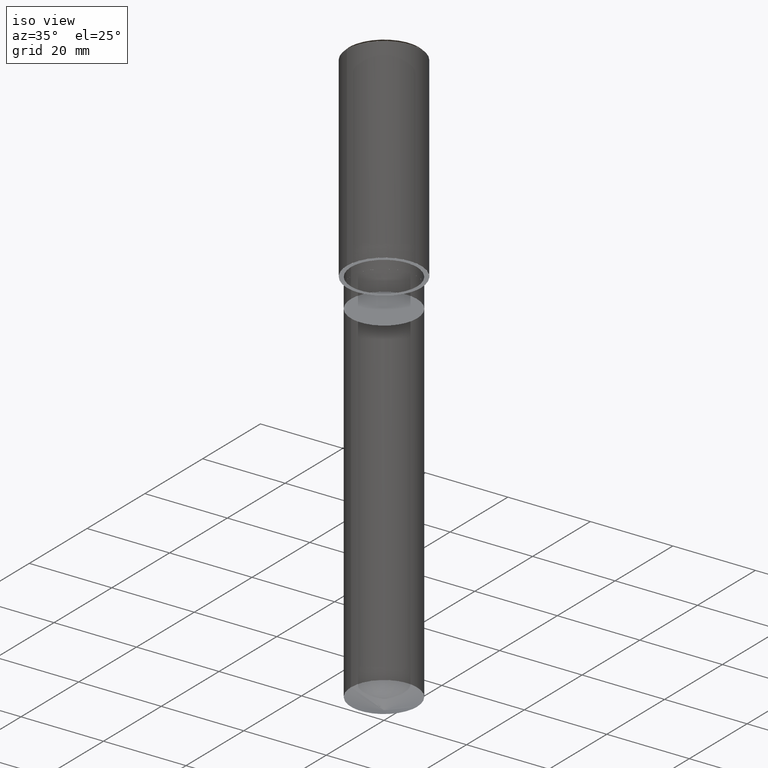
[diagram: clean part render]
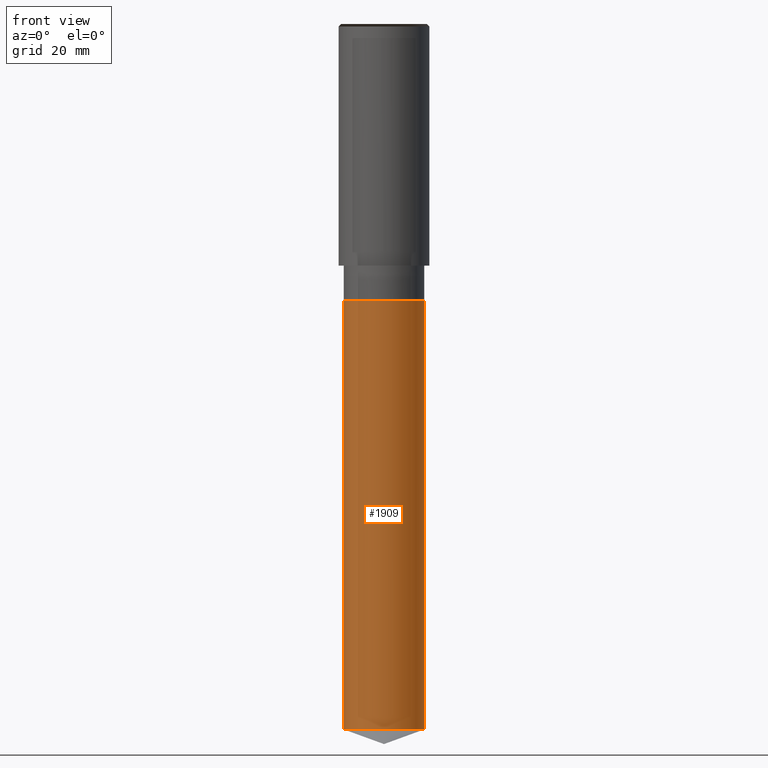
[diagram: tour spotlight — one face highlighted and labeled with its STEP entity id]
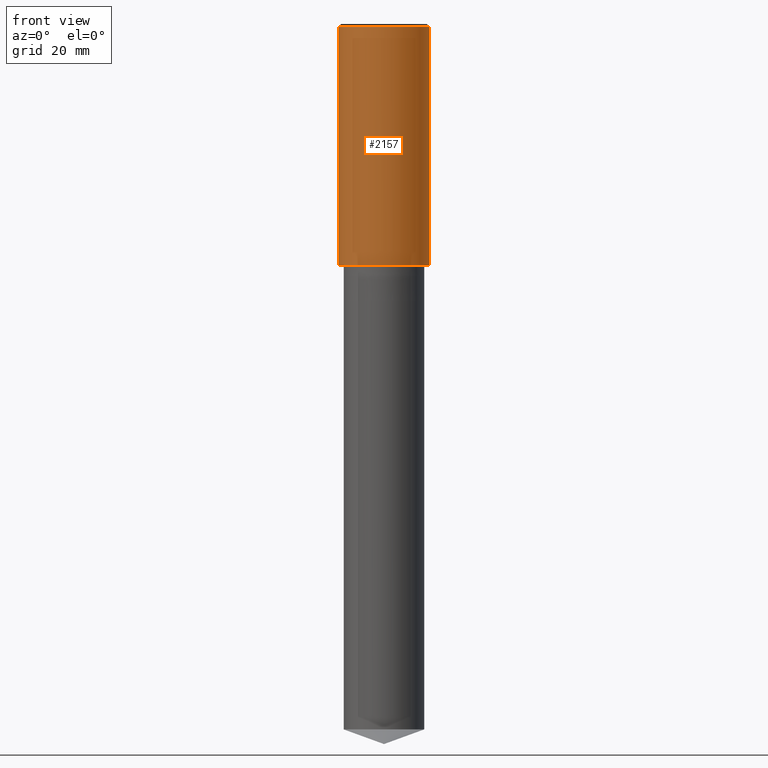
[diagram: tour spotlight — one face highlighted and labeled with its STEP entity id]
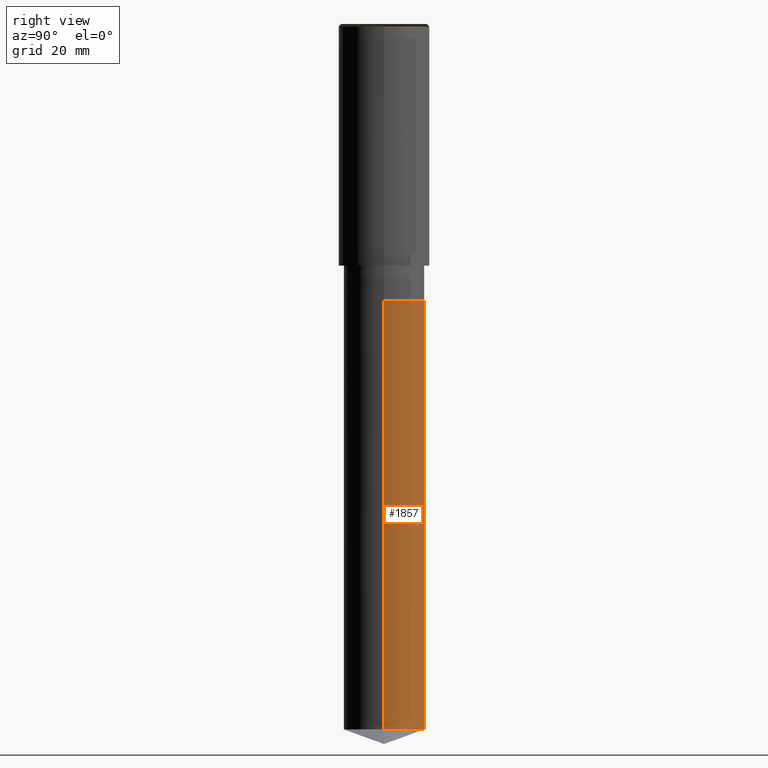
[diagram: tour spotlight — one face highlighted and labeled with its STEP entity id]
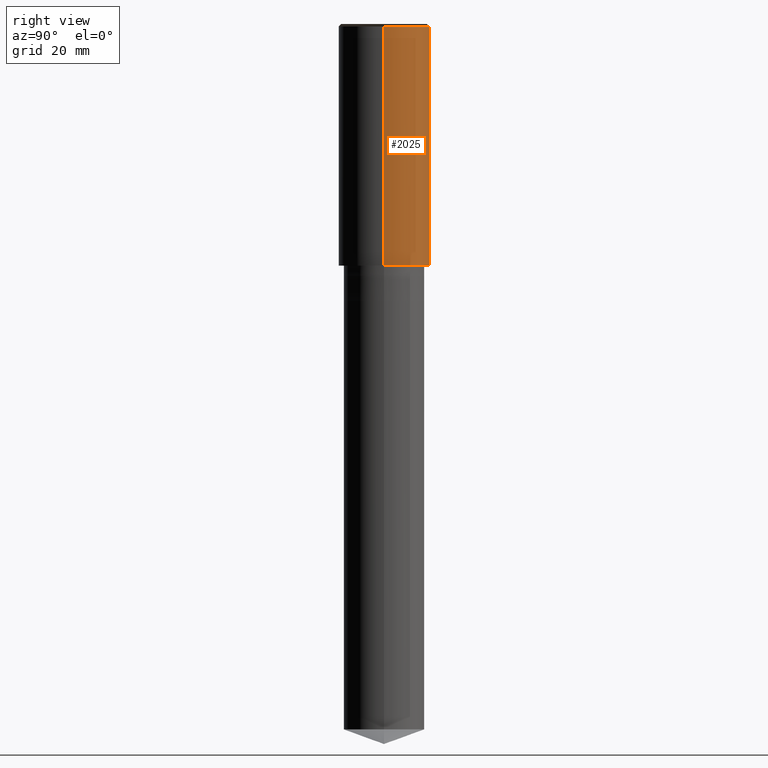
[diagram: tour spotlight — one face highlighted and labeled with its STEP entity id]
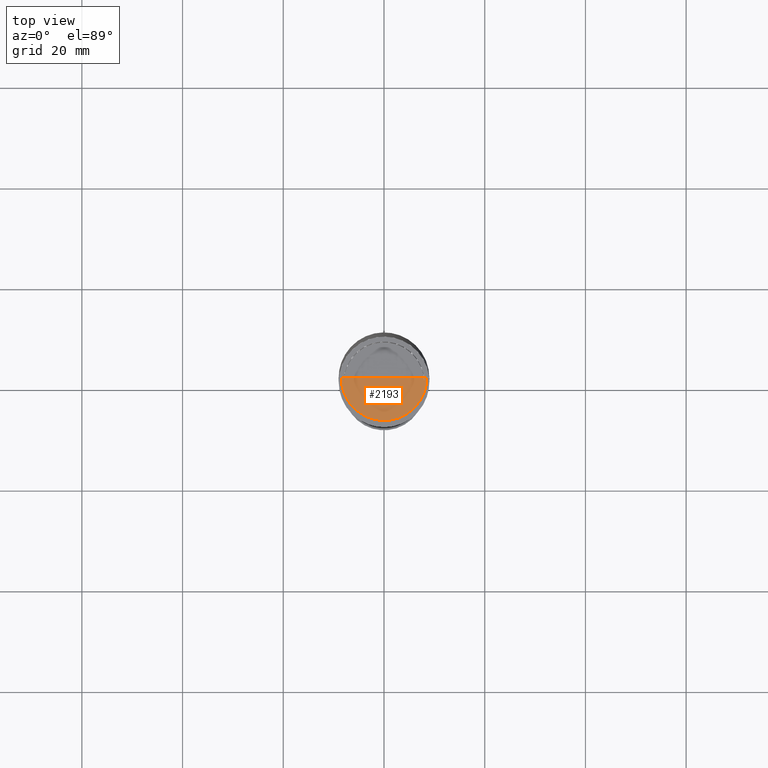
[diagram: tour spotlight — one face highlighted and labeled with its STEP entity id]
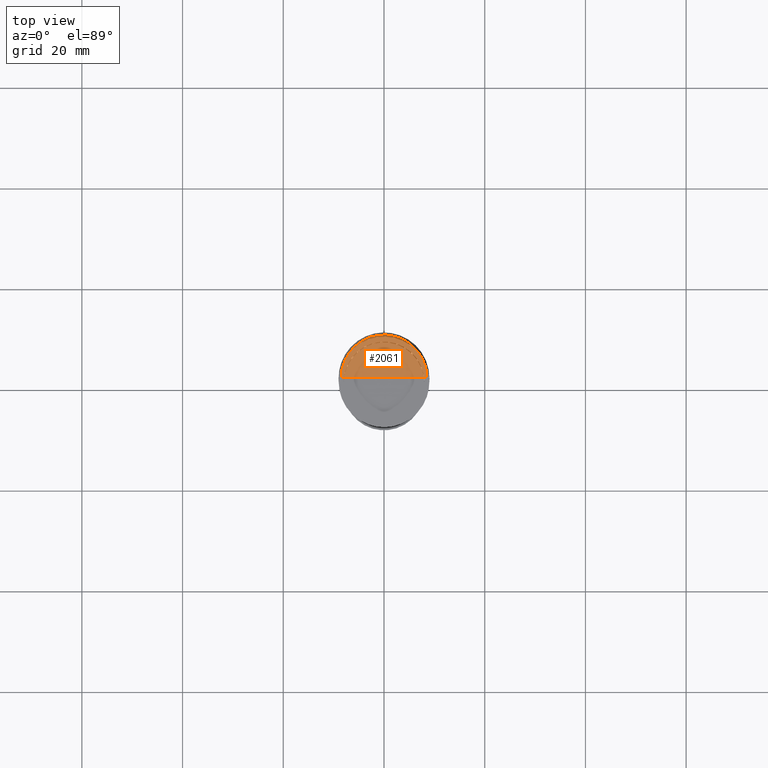
[diagram: tour spotlight — one face highlighted and labeled with its STEP entity id]
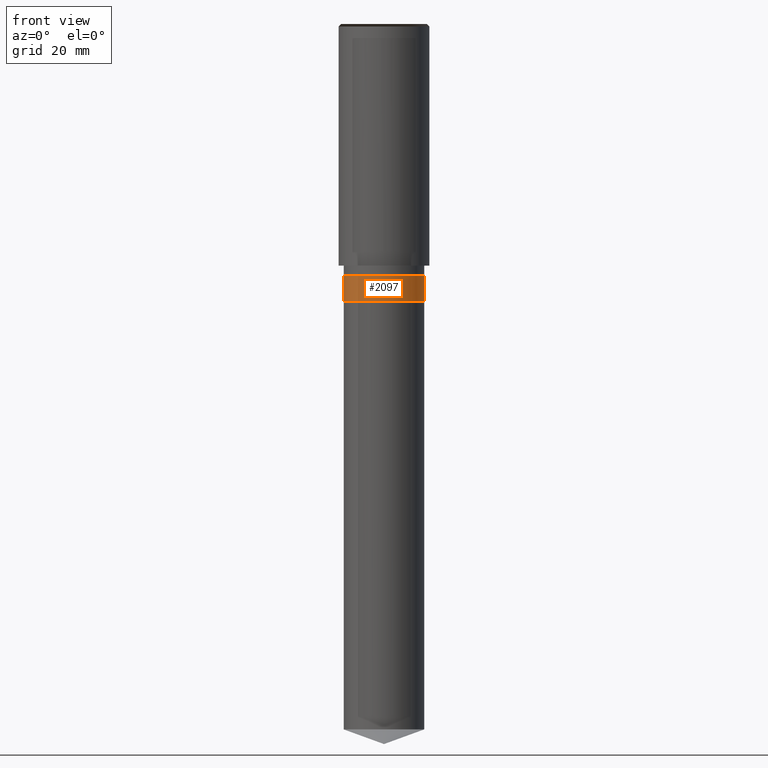
[diagram: tour spotlight — one face highlighted and labeled with its STEP entity id]
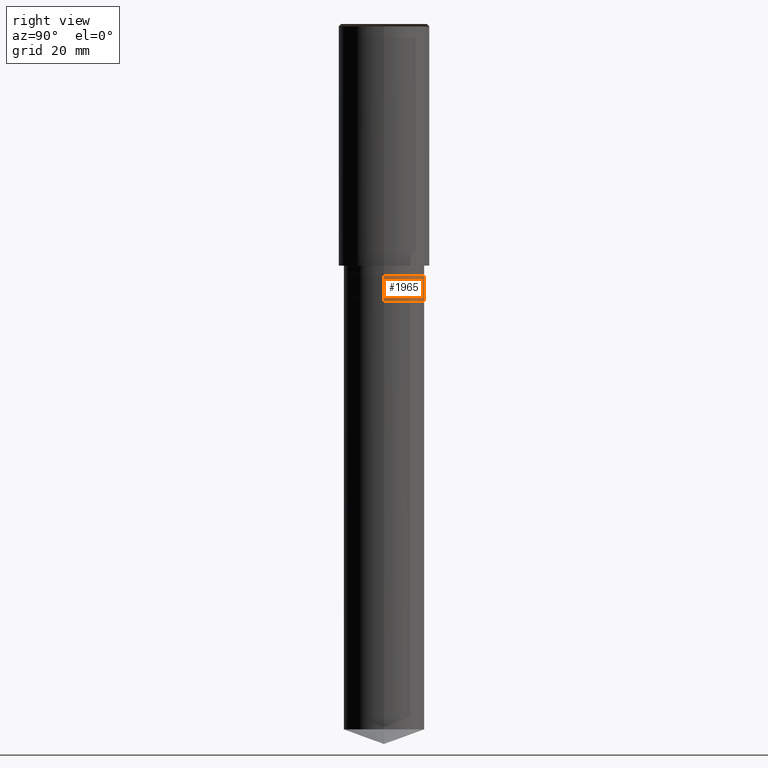
[diagram: tour spotlight — one face highlighted and labeled with its STEP entity id]
A machine part: a face-by-face anatomy tour. The part has 20 B-rep faces; the first image is the clean iso view, then the 8 largest visible faces are spotlighted one at a time (largest first), each with its STEP entity span.

Face 1 — front view, entity #1909. In plain terms, the highlighted face is a freeform B-spline surface patch.
Definition (entity closure, byte-faithful):
#1759=CARTESIAN_POINT('',(8.0,0.0,-92.08823812587));
#1763=CARTESIAN_POINT('',(-8.0,0.0,-92.08823812587));
#1764=CARTESIAN_POINT('',(8.0,0.0,-7.0));
#1768=CARTESIAN_POINT('',(-8.0,0.0,-7.0));
#1770=CARTESIAN_POINT('',(-8.0,-8.0,-92.08823812587));
#1771=CARTESIAN_POINT('',(0.0,-8.0,-92.08823812587));
#1772=CARTESIAN_POINT('',(8.0,-8.0,-92.08823812587));
#1773=CARTESIAN_POINT('',(-8.0,-8.0,-7.0));
#1774=CARTESIAN_POINT('',(0.0,-8.0,-7.0));
#1775=CARTESIAN_POINT('',(8.0,-8.0,-7.0));
#1890=(
BOUNDED_SURFACE()
B_SPLINE_SURFACE(1,2,(
(#1763,#1770,#1771,#1772,#1759),
(#1768,#1773,#1774,#1775,#1764)
), .UNSPECIFIED.,.F.,.F.,.F.)
B_SPLINE_SURFACE_WITH_KNOTS((2,2),(3,2,3),(
0.0,1.0),(
0.0,0.5,1.0), .UNSPECIFIED.)
GEOMETRIC_REPRESENTATION_ITEM()
RATIONAL_B_SPLINE_SURFACE(((1.0,0.707106781187,1.0,0.707106781187,1.0),
(1.0,0.707106781187,1.0,0.707106781187,1.0)
))
REPRESENTATION_ITEM('')
SURFACE()
);
#1891=(
BOUNDED_CURVE()
B_SPLINE_CURVE(2,(#1759,#1772,#1771,#1770,#1763),.UNSPECIFIED.,.F.,.F.)
B_SPLINE_CURVE_WITH_KNOTS((3,2,3),
(0.0,0.5,1.0),.UNSPECIFIED.)
CURVE()
GEOMETRIC_REPRESENTATION_ITEM()
RATIONAL_B_SPLINE_CURVE((1.0,0.707106781187,1.0,0.707106781187,1.0))
REPRESENTATION_ITEM('')
);
#1892=(
BOUNDED_CURVE()
B_SPLINE_CURVE(1,(#1763,#1768),.UNSPECIFIED.,.F.,.F.)
B_SPLINE_CURVE_WITH_KNOTS((2,2),
(0.0,1.0),.UNSPECIFIED.)
CURVE()
GEOMETRIC_REPRESENTATION_ITEM()
RATIONAL_B_SPLINE_CURVE((1.0,1.0))
REPRESENTATION_ITEM('')
);
#1893=(
BOUNDED_CURVE()
B_SPLINE_CURVE(2,(#1768,#1773,#1774,#1775,#1764),.UNSPECIFIED.,.F.,.F.)
B_SPLINE_CURVE_WITH_KNOTS((3,2,3),
(0.0,0.5,1.0),.UNSPECIFIED.)
CURVE()
GEOMETRIC_REPRESENTATION_ITEM()
RATIONAL_B_SPLINE_CURVE((1.0,0.707106781187,1.0,0.707106781187,1.0))
REPRESENTATION_ITEM('')
);
#1894=(
BOUNDED_CURVE()
B_SPLINE_CURVE(1,(#1764,#1759),.UNSPECIFIED.,.F.,.F.)
B_SPLINE_CURVE_WITH_KNOTS((2,2),
(0.0,1.0),.UNSPECIFIED.)
CURVE()
GEOMETRIC_REPRESENTATION_ITEM()
RATIONAL_B_SPLINE_CURVE((1.0,1.0))
REPRESENTATION_ITEM('')
);
#1895=VERTEX_POINT('',#1759);
#1896=VERTEX_POINT('',#1763);
#1897=VERTEX_POINT('',#1764);
#1898=VERTEX_POINT('',#1768);
#1899=EDGE_CURVE('',#1895,#1896,#1891,.T.);
#1900=EDGE_CURVE('',#1896,#1898,#1892,.T.);
#1901=EDGE_CURVE('',#1898,#1897,#1893,.T.);
#1902=EDGE_CURVE('',#1897,#1895,#1894,.T.);
#1903=ORIENTED_EDGE('',*,*,#1899,.T.);
#1904=ORIENTED_EDGE('',*,*,#1900,.T.);
#1905=ORIENTED_EDGE('',*,*,#1901,.T.);
#1906=ORIENTED_EDGE('',*,*,#1902,.T.);
#1907=EDGE_LOOP('',(#1903,#1904,#1905,#1906));
#1908=FACE_OUTER_BOUND('',#1907,.T.);
#1909=ADVANCED_FACE('',(#1908),#1890,.T.);

Face 2 — front view, entity #2157. In plain terms, the highlighted face is a freeform B-spline surface patch.
Definition (entity closure, byte-faithful):
#1786=CARTESIAN_POINT('',(9.0,0.0,0.0));
#1790=CARTESIAN_POINT('',(-9.0,0.0,0.0));
#1791=CARTESIAN_POINT('',(9.0,0.0,47.5));
#1795=CARTESIAN_POINT('',(-9.0,0.0,47.5));
#1808=CARTESIAN_POINT('',(-9.0,-9.0,0.0));
#1809=CARTESIAN_POINT('',(0.0,-9.0,0.0));
#1810=CARTESIAN_POINT('',(9.0,-9.0,0.0));
#1811=CARTESIAN_POINT('',(-9.0,-9.0,47.5));
#1812=CARTESIAN_POINT('',(0.0,-9.0,47.5));
#1813=CARTESIAN_POINT('',(9.0,-9.0,47.5));
#2138=(
BOUNDED_SURFACE()
B_SPLINE_SURFACE(1,2,(
(#1790,#1808,#1809,#1810,#1786),
(#1795,#1811,#1812,#1813,#1791)
), .UNSPECIFIED.,.F.,.F.,.F.)
B_SPLINE_SURFACE_WITH_KNOTS((2,2),(3,2,3),(
0.0,1.0),(
0.0,0.5,1.0), .UNSPECIFIED.)
GEOMETRIC_REPRESENTATION_ITEM()
RATIONAL_B_SPLINE_SURFACE(((1.0,0.707106781187,1.0,0.707106781187,1.0),
(1.0,0.707106781187,1.0,0.707106781187,1.0)
))
REPRESENTATION_ITEM('')
SURFACE()
);
#2139=(
BOUNDED_CURVE()
B_SPLINE_CURVE(2,(#1786,#1810,#1809,#1808,#1790),.UNSPECIFIED.,.F.,.F.)
B_SPLINE_CURVE_WITH_KNOTS((3,2,3),
(0.0,0.5,1.0),.UNSPECIFIED.)
CURVE()
GEOMETRIC_REPRESENTATION_ITEM()
RATIONAL_B_SPLINE_CURVE((1.0,0.707106781187,1.0,0.707106781187,1.0))
REPRESENTATION_ITEM('')
);
#2140=(
BOUNDED_CURVE()
B_SPLINE_CURVE(1,(#1790,#1795),.UNSPECIFIED.,.F.,.F.)
B_SPLINE_CURVE_WITH_KNOTS((2,2),
(0.0,1.0),.UNSPECIFIED.)
CURVE()
GEOMETRIC_REPRESENTATION_ITEM()
RATIONAL_B_SPLINE_CURVE((1.0,1.0))
REPRESENTATION_ITEM('')
);
#2141=(
BOUNDED_CURVE()
B_SPLINE_CURVE(2,(#1795,#1811,#1812,#1813,#1791),.UNSPECIFIED.,.F.,.F.)
B_SPLINE_CURVE_WITH_KNOTS((3,2,3),
(0.0,0.5,1.0),.UNSPECIFIED.)
CURVE()
GEOMETRIC_REPRESENTATION_ITEM()
RATIONAL_B_SPLINE_CURVE((1.0,0.707106781187,1.0,0.707106781187,1.0))
REPRESENTATION_ITEM('')
);
#2142=(
BOUNDED_CURVE()
B_SPLINE_CURVE(1,(#1791,#1786),.UNSPECIFIED.,.F.,.F.)
B_SPLINE_CURVE_WITH_KNOTS((2,2),
(0.0,1.0),.UNSPECIFIED.)
CURVE()
GEOMETRIC_REPRESENTATION_ITEM()
RATIONAL_B_SPLINE_CURVE((1.0,1.0))
REPRESENTATION_ITEM('')
);
#2143=VERTEX_POINT('',#1786);
#2144=VERTEX_POINT('',#1790);
#2145=VERTEX_POINT('',#1791);
#2146=VERTEX_POINT('',#1795);
#2147=EDGE_CURVE('',#2143,#2144,#2139,.T.);
#2148=EDGE_CURVE('',#2144,#2146,#2140,.T.);
#2149=EDGE_CURVE('',#2146,#2145,#2141,.T.);
#2150=EDGE_CURVE('',#2145,#2143,#2142,.T.);
#2151=ORIENTED_EDGE('',*,*,#2147,.T.);
#2152=ORIENTED_EDGE('',*,*,#2148,.T.);
#2153=ORIENTED_EDGE('',*,*,#2149,.T.);
#2154=ORIENTED_EDGE('',*,*,#2150,.T.);
#2155=EDGE_LOOP('',(#2151,#2152,#2153,#2154));
#2156=FACE_OUTER_BOUND('',#2155,.T.);
#2157=ADVANCED_FACE('',(#2156),#2138,.T.);

Face 3 — right view, entity #1857. In plain terms, the highlighted face is a freeform B-spline surface patch.
Definition (entity closure, byte-faithful):
#1759=CARTESIAN_POINT('',(8.0,0.0,-92.08823812587));
#1760=CARTESIAN_POINT('',(8.0,8.0,-92.08823812587));
#1761=CARTESIAN_POINT('',(0.0,8.0,-92.08823812587));
#1762=CARTESIAN_POINT('',(-8.0,8.0,-92.08823812587));
#1763=CARTESIAN_POINT('',(-8.0,0.0,-92.08823812587));
#1764=CARTESIAN_POINT('',(8.0,0.0,-7.0));
#1765=CARTESIAN_POINT('',(8.0,8.0,-7.0));
#1766=CARTESIAN_POINT('',(0.0,8.0,-7.0));
#1767=CARTESIAN_POINT('',(-8.0,8.0,-7.0));
#1768=CARTESIAN_POINT('',(-8.0,0.0,-7.0));
#1838=(
BOUNDED_SURFACE()
B_SPLINE_SURFACE(1,2,(
(#1759,#1760,#1761,#1762,#1763),
(#1764,#1765,#1766,#1767,#1768)
), .UNSPECIFIED.,.F.,.F.,.F.)
B_SPLINE_SURFACE_WITH_KNOTS((2,2),(3,2,3),(
0.0,1.0),(
0.0,0.5,1.0), .UNSPECIFIED.)
GEOMETRIC_REPRESENTATION_ITEM()
RATIONAL_B_SPLINE_SURFACE(((1.0,0.707106781187,1.0,0.707106781187,1.0),
(1.0,0.707106781187,1.0,0.707106781187,1.0)
))
REPRESENTATION_ITEM('')
SURFACE()
);
#1839=(
BOUNDED_CURVE()
B_SPLINE_CURVE(2,(#1763,#1762,#1761,#1760,#1759),.UNSPECIFIED.,.F.,.F.)
B_SPLINE_CURVE_WITH_KNOTS((3,2,3),
(0.0,0.5,1.0),.UNSPECIFIED.)
CURVE()
GEOMETRIC_REPRESENTATION_ITEM()
RATIONAL_B_SPLINE_CURVE((1.0,0.707106781187,1.0,0.707106781187,1.0))
REPRESENTATION_ITEM('')
);
#1840=(
BOUNDED_CURVE()
B_SPLINE_CURVE(1,(#1759,#1764),.UNSPECIFIED.,.F.,.F.)
B_SPLINE_CURVE_WITH_KNOTS((2,2),
(0.0,1.0),.UNSPECIFIED.)
CURVE()
GEOMETRIC_REPRESENTATION_ITEM()
RATIONAL_B_SPLINE_CURVE((1.0,1.0))
REPRESENTATION_ITEM('')
);
#1841=(
BOUNDED_CURVE()
B_SPLINE_CURVE(2,(#1764,#1765,#1766,#1767,#1768),.UNSPECIFIED.,.F.,.F.)
B_SPLINE_CURVE_WITH_KNOTS((3,2,3),
(0.0,0.5,1.0),.UNSPECIFIED.)
CURVE()
GEOMETRIC_REPRESENTATION_ITEM()
RATIONAL_B_SPLINE_CURVE((1.0,0.707106781187,1.0,0.707106781187,1.0))
REPRESENTATION_ITEM('')
);
#1842=(
BOUNDED_CURVE()
B_SPLINE_CURVE(1,(#1768,#1763),.UNSPECIFIED.,.F.,.F.)
B_SPLINE_CURVE_WITH_KNOTS((2,2),
(0.0,1.0),.UNSPECIFIED.)
CURVE()
GEOMETRIC_REPRESENTATION_ITEM()
RATIONAL_B_SPLINE_CURVE((1.0,1.0))
REPRESENTATION_ITEM('')
);
#1843=VERTEX_POINT('',#1759);
#1844=VERTEX_POINT('',#1763);
#1845=VERTEX_POINT('',#1764);
#1846=VERTEX_POINT('',#1768);
#1847=EDGE_CURVE('',#1844,#1843,#1839,.T.);
#1848=EDGE_CURVE('',#1843,#1845,#1840,.T.);
#1849=EDGE_CURVE('',#1845,#1846,#1841,.T.);
#1850=EDGE_CURVE('',#1846,#1844,#1842,.T.);
#1851=ORIENTED_EDGE('',*,*,#1847,.T.);
#1852=ORIENTED_EDGE('',*,*,#1848,.T.);
#1853=ORIENTED_EDGE('',*,*,#1849,.T.);
#1854=ORIENTED_EDGE('',*,*,#1850,.T.);
#1855=EDGE_LOOP('',(#1851,#1852,#1853,#1854));
#1856=FACE_OUTER_BOUND('',#1855,.T.);
#1857=ADVANCED_FACE('',(#1856),#1838,.T.);

Face 4 — right view, entity #2025. In plain terms, the highlighted face is a freeform B-spline surface patch.
Definition (entity closure, byte-faithful):
#1786=CARTESIAN_POINT('',(9.0,0.0,0.0));
#1787=CARTESIAN_POINT('',(9.0,9.0,0.0));
#1788=CARTESIAN_POINT('',(0.0,9.0,0.0));
#1789=CARTESIAN_POINT('',(-9.0,9.0,0.0));
#1790=CARTESIAN_POINT('',(-9.0,0.0,0.0));
#1791=CARTESIAN_POINT('',(9.0,0.0,47.5));
#1792=CARTESIAN_POINT('',(9.0,9.0,47.5));
#1793=CARTESIAN_POINT('',(0.0,9.0,47.5));
#1794=CARTESIAN_POINT('',(-9.0,9.0,47.5));
#1795=CARTESIAN_POINT('',(-9.0,0.0,47.5));
#2006=(
BOUNDED_SURFACE()
B_SPLINE_SURFACE(1,2,(
(#1786,#1787,#1788,#1789,#1790),
(#1791,#1792,#1793,#1794,#1795)
), .UNSPECIFIED.,.F.,.F.,.F.)
B_SPLINE_SURFACE_WITH_KNOTS((2,2),(3,2,3),(
0.0,1.0),(
0.0,0.5,1.0), .UNSPECIFIED.)
GEOMETRIC_REPRESENTATION_ITEM()
RATIONAL_B_SPLINE_SURFACE(((1.0,0.707106781187,1.0,0.707106781187,1.0),
(1.0,0.707106781187,1.0,0.707106781187,1.0)
))
REPRESENTATION_ITEM('')
SURFACE()
);
#2007=(
BOUNDED_CURVE()
B_SPLINE_CURVE(2,(#1790,#1789,#1788,#1787,#1786),.UNSPECIFIED.,.F.,.F.)
B_SPLINE_CURVE_WITH_KNOTS((3,2,3),
(0.0,0.5,1.0),.UNSPECIFIED.)
CURVE()
GEOMETRIC_REPRESENTATION_ITEM()
RATIONAL_B_SPLINE_CURVE((1.0,0.707106781187,1.0,0.707106781187,1.0))
REPRESENTATION_ITEM('')
);
#2008=(
BOUNDED_CURVE()
B_SPLINE_CURVE(1,(#1786,#1791),.UNSPECIFIED.,.F.,.F.)
B_SPLINE_CURVE_WITH_KNOTS((2,2),
(0.0,1.0),.UNSPECIFIED.)
CURVE()
GEOMETRIC_REPRESENTATION_ITEM()
RATIONAL_B_SPLINE_CURVE((1.0,1.0))
REPRESENTATION_ITEM('')
);
#2009=(
BOUNDED_CURVE()
B_SPLINE_CURVE(2,(#1791,#1792,#1793,#1794,#1795),.UNSPECIFIED.,.F.,.F.)
B_SPLINE_CURVE_WITH_KNOTS((3,2,3),
(0.0,0.5,1.0),.UNSPECIFIED.)
CURVE()
GEOMETRIC_REPRESENTATION_ITEM()
RATIONAL_B_SPLINE_CURVE((1.0,0.707106781187,1.0,0.707106781187,1.0))
REPRESENTATION_ITEM('')
);
#2010=(
BOUNDED_CURVE()
B_SPLINE_CURVE(1,(#1795,#1790),.UNSPECIFIED.,.F.,.F.)
B_SPLINE_CURVE_WITH_KNOTS((2,2),
(0.0,1.0),.UNSPECIFIED.)
CURVE()
GEOMETRIC_REPRESENTATION_ITEM()
RATIONAL_B_SPLINE_CURVE((1.0,1.0))
REPRESENTATION_ITEM('')
);
#2011=VERTEX_POINT('',#1786);
#2012=VERTEX_POINT('',#1790);
#2013=VERTEX_POINT('',#1791);
#2014=VERTEX_POINT('',#1795);
#2015=EDGE_CURVE('',#2012,#2011,#2007,.T.);
#2016=EDGE_CURVE('',#2011,#2013,#2008,.T.);
#2017=EDGE_CURVE('',#2013,#2014,#2009,.T.);
#2018=EDGE_CURVE('',#2014,#2012,#2010,.T.);
#2019=ORIENTED_EDGE('',*,*,#2015,.T.);
#2020=ORIENTED_EDGE('',*,*,#2016,.T.);
#2021=ORIENTED_EDGE('',*,*,#2017,.T.);
#2022=ORIENTED_EDGE('',*,*,#2018,.T.);
#2023=EDGE_LOOP('',(#2019,#2020,#2021,#2022));
#2024=FACE_OUTER_BOUND('',#2023,.T.);
#2025=ADVANCED_FACE('',(#2024),#2006,.T.);

Face 5 — top view, entity #2193. In plain terms, the highlighted face is a freeform B-spline surface patch.
Definition (entity closure, byte-faithful):
#1796=CARTESIAN_POINT('',(8.5,0.0,48.0));
#1800=CARTESIAN_POINT('',(-8.5,0.0,48.0));
#1801=CARTESIAN_POINT('',(0.0,0.0,48.0));
#1814=CARTESIAN_POINT('',(-8.5,-8.5,48.0));
#1815=CARTESIAN_POINT('',(0.0,-8.5,48.0));
#1816=CARTESIAN_POINT('',(8.5,-8.5,48.0));
#2178=(
BOUNDED_SURFACE()
B_SPLINE_SURFACE(1,2,(
(#1800,#1814,#1815,#1816,#1796),
(#1801,#1801,#1801,#1801,#1801)
), .UNSPECIFIED.,.F.,.F.,.F.)
B_SPLINE_SURFACE_WITH_KNOTS((2,2),(3,2,3),(
0.0,1.0),(
0.0,0.5,1.0), .UNSPECIFIED.)
GEOMETRIC_REPRESENTATION_ITEM()
RATIONAL_B_SPLINE_SURFACE(((1.0,0.707106781187,1.0,0.707106781187,1.0),
(1.0,0.707106781187,1.0,0.707106781187,1.0)
))
REPRESENTATION_ITEM('')
SURFACE()
);
#2179=(
BOUNDED_CURVE()
B_SPLINE_CURVE(2,(#1796,#1816,#1815,#1814,#1800),.UNSPECIFIED.,.F.,.F.)
B_SPLINE_CURVE_WITH_KNOTS((3,2,3),
(0.0,0.5,1.0),.UNSPECIFIED.)
CURVE()
GEOMETRIC_REPRESENTATION_ITEM()
RATIONAL_B_SPLINE_CURVE((1.0,0.707106781187,1.0,0.707106781187,1.0))
REPRESENTATION_ITEM('')
);
#2180=(
BOUNDED_CURVE()
B_SPLINE_CURVE(1,(#1800,#1801),.UNSPECIFIED.,.F.,.F.)
B_SPLINE_CURVE_WITH_KNOTS((2,2),
(0.0,1.0),.UNSPECIFIED.)
CURVE()
GEOMETRIC_REPRESENTATION_ITEM()
RATIONAL_B_SPLINE_CURVE((1.0,1.0))
REPRESENTATION_ITEM('')
);
#2181=(
BOUNDED_CURVE()
B_SPLINE_CURVE(1,(#1801,#1796),.UNSPECIFIED.,.F.,.F.)
B_SPLINE_CURVE_WITH_KNOTS((2,2),
(0.0,1.0),.UNSPECIFIED.)
CURVE()
GEOMETRIC_REPRESENTATION_ITEM()
RATIONAL_B_SPLINE_CURVE((1.0,1.0))
REPRESENTATION_ITEM('')
);
#2182=VERTEX_POINT('',#1796);
#2183=VERTEX_POINT('',#1800);
#2184=VERTEX_POINT('',#1801);
#2185=EDGE_CURVE('',#2182,#2183,#2179,.T.);
#2186=EDGE_CURVE('',#2183,#2184,#2180,.T.);
#2187=EDGE_CURVE('',#2184,#2182,#2181,.T.);
#2188=ORIENTED_EDGE('',*,*,#2185,.T.);
#2189=ORIENTED_EDGE('',*,*,#2186,.T.);
#2190=ORIENTED_EDGE('',*,*,#2187,.T.);
#2191=EDGE_LOOP('',(#2188,#2189,#2190));
#2192=FACE_OUTER_BOUND('',#2191,.T.);
#2193=ADVANCED_FACE('',(#2192),#2178,.T.);

Face 6 — top view, entity #2061. In plain terms, the highlighted face is a freeform B-spline surface patch.
Definition (entity closure, byte-faithful):
#1796=CARTESIAN_POINT('',(8.5,0.0,48.0));
#1797=CARTESIAN_POINT('',(8.5,8.5,48.0));
#1798=CARTESIAN_POINT('',(0.0,8.5,48.0));
#1799=CARTESIAN_POINT('',(-8.5,8.5,48.0));
#1800=CARTESIAN_POINT('',(-8.5,0.0,48.0));
#1801=CARTESIAN_POINT('',(0.0,0.0,48.0));
#2046=(
BOUNDED_SURFACE()
B_SPLINE_SURFACE(1,2,(
(#1796,#1797,#1798,#1799,#1800),
(#1801,#1801,#1801,#1801,#1801)
), .UNSPECIFIED.,.F.,.F.,.F.)
B_SPLINE_SURFACE_WITH_KNOTS((2,2),(3,2,3),(
0.0,1.0),(
0.0,0.5,1.0), .UNSPECIFIED.)
GEOMETRIC_REPRESENTATION_ITEM()
RATIONAL_B_SPLINE_SURFACE(((1.0,0.707106781187,1.0,0.707106781187,1.0),
(1.0,0.707106781187,1.0,0.707106781187,1.0)
))
REPRESENTATION_ITEM('')
SURFACE()
);
#2047=(
BOUNDED_CURVE()
B_SPLINE_CURVE(2,(#1800,#1799,#1798,#1797,#1796),.UNSPECIFIED.,.F.,.F.)
B_SPLINE_CURVE_WITH_KNOTS((3,2,3),
(0.0,0.5,1.0),.UNSPECIFIED.)
CURVE()
GEOMETRIC_REPRESENTATION_ITEM()
RATIONAL_B_SPLINE_CURVE((1.0,0.707106781187,1.0,0.707106781187,1.0))
REPRESENTATION_ITEM('')
);
#2048=(
BOUNDED_CURVE()
B_SPLINE_CURVE(1,(#1796,#1801),.UNSPECIFIED.,.F.,.F.)
B_SPLINE_CURVE_WITH_KNOTS((2,2),
(0.0,1.0),.UNSPECIFIED.)
CURVE()
GEOMETRIC_REPRESENTATION_ITEM()
RATIONAL_B_SPLINE_CURVE((1.0,1.0))
REPRESENTATION_ITEM('')
);
#2049=(
BOUNDED_CURVE()
B_SPLINE_CURVE(1,(#1801,#1800),.UNSPECIFIED.,.F.,.F.)
B_SPLINE_CURVE_WITH_KNOTS((2,2),
(0.0,1.0),.UNSPECIFIED.)
CURVE()
GEOMETRIC_REPRESENTATION_ITEM()
RATIONAL_B_SPLINE_CURVE((1.0,1.0))
REPRESENTATION_ITEM('')
);
#2050=VERTEX_POINT('',#1796);
#2051=VERTEX_POINT('',#1800);
#2052=VERTEX_POINT('',#1801);
#2053=EDGE_CURVE('',#2051,#2050,#2047,.T.);
#2054=EDGE_CURVE('',#2050,#2052,#2048,.T.);
#2055=EDGE_CURVE('',#2052,#2051,#2049,.T.);
#2056=ORIENTED_EDGE('',*,*,#2053,.T.);
#2057=ORIENTED_EDGE('',*,*,#2054,.T.);
#2058=ORIENTED_EDGE('',*,*,#2055,.T.);
#2059=EDGE_LOOP('',(#2056,#2057,#2058));
#2060=FACE_OUTER_BOUND('',#2059,.T.);
#2061=ADVANCED_FACE('',(#2060),#2046,.T.);

Face 7 — front view, entity #2097. In plain terms, the highlighted face is a freeform B-spline surface patch.
Definition (entity closure, byte-faithful):
#1764=CARTESIAN_POINT('',(8.0,0.0,-7.0));
#1768=CARTESIAN_POINT('',(-8.0,0.0,-7.0));
#1773=CARTESIAN_POINT('',(-8.0,-8.0,-7.0));
#1774=CARTESIAN_POINT('',(0.0,-8.0,-7.0));
#1775=CARTESIAN_POINT('',(8.0,-8.0,-7.0));
#1776=CARTESIAN_POINT('',(8.0,0.0,-2.0));
#1780=CARTESIAN_POINT('',(-8.0,0.0,-2.0));
#1802=CARTESIAN_POINT('',(-8.0,-8.0,-2.0));
#1803=CARTESIAN_POINT('',(0.0,-8.0,-2.0));
#1804=CARTESIAN_POINT('',(8.0,-8.0,-2.0));
#2078=(
BOUNDED_SURFACE()
B_SPLINE_SURFACE(1,2,(
(#1768,#1773,#1774,#1775,#1764),
(#1780,#1802,#1803,#1804,#1776)
), .UNSPECIFIED.,.F.,.F.,.F.)
B_SPLINE_SURFACE_WITH_KNOTS((2,2),(3,2,3),(
0.0,1.0),(
0.0,0.5,1.0), .UNSPECIFIED.)
GEOMETRIC_REPRESENTATION_ITEM()
RATIONAL_B_SPLINE_SURFACE(((1.0,0.707106781187,1.0,0.707106781187,1.0),
(1.0,0.707106781187,1.0,0.707106781187,1.0)
))
REPRESENTATION_ITEM('')
SURFACE()
);
#2079=(
BOUNDED_CURVE()
B_SPLINE_CURVE(2,(#1764,#1775,#1774,#1773,#1768),.UNSPECIFIED.,.F.,.F.)
B_SPLINE_CURVE_WITH_KNOTS((3,2,3),
(0.0,0.5,1.0),.UNSPECIFIED.)
CURVE()
GEOMETRIC_REPRESENTATION_ITEM()
RATIONAL_B_SPLINE_CURVE((1.0,0.707106781187,1.0,0.707106781187,1.0))
REPRESENTATION_ITEM('')
);
#2080=(
BOUNDED_CURVE()
B_SPLINE_CURVE(1,(#1768,#1780),.UNSPECIFIED.,.F.,.F.)
B_SPLINE_CURVE_WITH_KNOTS((2,2),
(0.0,1.0),.UNSPECIFIED.)
CURVE()
GEOMETRIC_REPRESENTATION_ITEM()
RATIONAL_B_SPLINE_CURVE((1.0,1.0))
REPRESENTATION_ITEM('')
);
#2081=(
BOUNDED_CURVE()
B_SPLINE_CURVE(2,(#1780,#1802,#1803,#1804,#1776),.UNSPECIFIED.,.F.,.F.)
B_SPLINE_CURVE_WITH_KNOTS((3,2,3),
(0.0,0.5,1.0),.UNSPECIFIED.)
CURVE()
GEOMETRIC_REPRESENTATION_ITEM()
RATIONAL_B_SPLINE_CURVE((1.0,0.707106781187,1.0,0.707106781187,1.0))
REPRESENTATION_ITEM('')
);
#2082=(
BOUNDED_CURVE()
B_SPLINE_CURVE(1,(#1776,#1764),.UNSPECIFIED.,.F.,.F.)
B_SPLINE_CURVE_WITH_KNOTS((2,2),
(0.0,1.0),.UNSPECIFIED.)
CURVE()
GEOMETRIC_REPRESENTATION_ITEM()
RATIONAL_B_SPLINE_CURVE((1.0,1.0))
REPRESENTATION_ITEM('')
);
#2083=VERTEX_POINT('',#1764);
#2084=VERTEX_POINT('',#1768);
#2085=VERTEX_POINT('',#1776);
#2086=VERTEX_POINT('',#1780);
#2087=EDGE_CURVE('',#2083,#2084,#2079,.T.);
#2088=EDGE_CURVE('',#2084,#2086,#2080,.T.);
#2089=EDGE_CURVE('',#2086,#2085,#2081,.T.);
#2090=EDGE_CURVE('',#2085,#2083,#2082,.T.);
#2091=ORIENTED_EDGE('',*,*,#2087,.T.);
#2092=ORIENTED_EDGE('',*,*,#2088,.T.);
#2093=ORIENTED_EDGE('',*,*,#2089,.T.);
#2094=ORIENTED_EDGE('',*,*,#2090,.T.);
#2095=EDGE_LOOP('',(#2091,#2092,#2093,#2094));
#2096=FACE_OUTER_BOUND('',#2095,.T.);
#2097=ADVANCED_FACE('',(#2096),#2078,.T.);

Face 8 — right view, entity #1965. In plain terms, the highlighted face is a freeform B-spline surface patch.
Definition (entity closure, byte-faithful):
#1764=CARTESIAN_POINT('',(8.0,0.0,-7.0));
#1765=CARTESIAN_POINT('',(8.0,8.0,-7.0));
#1766=CARTESIAN_POINT('',(0.0,8.0,-7.0));
#1767=CARTESIAN_POINT('',(-8.0,8.0,-7.0));
#1768=CARTESIAN_POINT('',(-8.0,0.0,-7.0));
#1776=CARTESIAN_POINT('',(8.0,0.0,-2.0));
#1777=CARTESIAN_POINT('',(8.0,8.0,-2.0));
#1778=CARTESIAN_POINT('',(0.0,8.0,-2.0));
#1779=CARTESIAN_POINT('',(-8.0,8.0,-2.0));
#1780=CARTESIAN_POINT('',(-8.0,0.0,-2.0));
#1946=(
BOUNDED_SURFACE()
B_SPLINE_SURFACE(1,2,(
(#1764,#1765,#1766,#1767,#1768),
(#1776,#1777,#1778,#1779,#1780)
), .UNSPECIFIED.,.F.,.F.,.F.)
B_SPLINE_SURFACE_WITH_KNOTS((2,2),(3,2,3),(
0.0,1.0),(
0.0,0.5,1.0), .UNSPECIFIED.)
GEOMETRIC_REPRESENTATION_ITEM()
RATIONAL_B_SPLINE_SURFACE(((1.0,0.707106781187,1.0,0.707106781187,1.0),
(1.0,0.707106781187,1.0,0.707106781187,1.0)
))
REPRESENTATION_ITEM('')
SURFACE()
);
#1947=(
BOUNDED_CURVE()
B_SPLINE_CURVE(2,(#1768,#1767,#1766,#1765,#1764),.UNSPECIFIED.,.F.,.F.)
B_SPLINE_CURVE_WITH_KNOTS((3,2,3),
(0.0,0.5,1.0),.UNSPECIFIED.)
CURVE()
GEOMETRIC_REPRESENTATION_ITEM()
RATIONAL_B_SPLINE_CURVE((1.0,0.707106781187,1.0,0.707106781187,1.0))
REPRESENTATION_ITEM('')
);
#1948=(
BOUNDED_CURVE()
B_SPLINE_CURVE(1,(#1764,#1776),.UNSPECIFIED.,.F.,.F.)
B_SPLINE_CURVE_WITH_KNOTS((2,2),
(0.0,1.0),.UNSPECIFIED.)
CURVE()
GEOMETRIC_REPRESENTATION_ITEM()
RATIONAL_B_SPLINE_CURVE((1.0,1.0))
REPRESENTATION_ITEM('')
);
#1949=(
BOUNDED_CURVE()
B_SPLINE_CURVE(2,(#1776,#1777,#1778,#1779,#1780),.UNSPECIFIED.,.F.,.F.)
B_SPLINE_CURVE_WITH_KNOTS((3,2,3),
(0.0,0.5,1.0),.UNSPECIFIED.)
CURVE()
GEOMETRIC_REPRESENTATION_ITEM()
RATIONAL_B_SPLINE_CURVE((1.0,0.707106781187,1.0,0.707106781187,1.0))
REPRESENTATION_ITEM('')
);
#1950=(
BOUNDED_CURVE()
B_SPLINE_CURVE(1,(#1780,#1768),.UNSPECIFIED.,.F.,.F.)
B_SPLINE_CURVE_WITH_KNOTS((2,2),
(0.0,1.0),.UNSPECIFIED.)
CURVE()
GEOMETRIC_REPRESENTATION_ITEM()
RATIONAL_B_SPLINE_CURVE((1.0,1.0))
REPRESENTATION_ITEM('')
);
#1951=VERTEX_POINT('',#1764);
#1952=VERTEX_POINT('',#1768);
#1953=VERTEX_POINT('',#1776);
#1954=VERTEX_POINT('',#1780);
#1955=EDGE_CURVE('',#1952,#1951,#1947,.T.);
#1956=EDGE_CURVE('',#1951,#1953,#1948,.T.);
#1957=EDGE_CURVE('',#1953,#1954,#1949,.T.);
#1958=EDGE_CURVE('',#1954,#1952,#1950,.T.);
#1959=ORIENTED_EDGE('',*,*,#1955,.T.);
#1960=ORIENTED_EDGE('',*,*,#1956,.T.);
#1961=ORIENTED_EDGE('',*,*,#1957,.T.);
#1962=ORIENTED_EDGE('',*,*,#1958,.T.);
#1963=EDGE_LOOP('',(#1959,#1960,#1961,#1962));
#1964=FACE_OUTER_BOUND('',#1963,.T.);
#1965=ADVANCED_FACE('',(#1964),#1946,.T.);